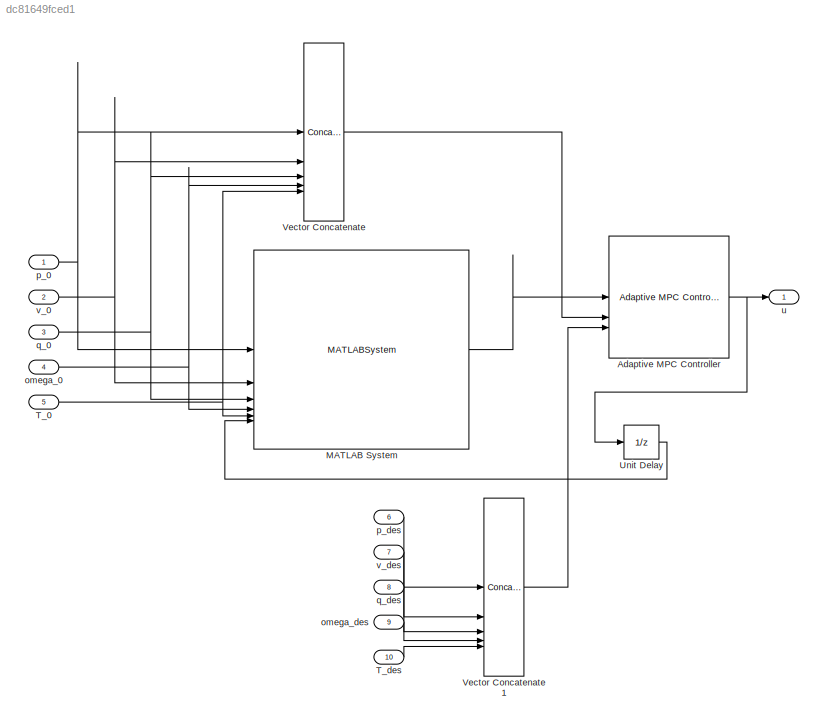
MODEL slx_dc81649fced1
KIND model
CONFIG AbsTol = auto
CONFIG EnableMultiTasking = off
CONFIG FixedStep = auto
CONFIG InitFcn = m = 1;\nv_0 = [0; 0; 0];\nq_0 = [1; 0; 0; 0];\nomega_0 = [0; 0; 0];\nT_0 = [0; 0; 9.81 * m];\nu_0 = [0; 0; 0];\n\nts = 0.05;\n\n[A, B, C, D, DX] = computePlantMats(v_0, q_0, omega_0, T_0, u_0);\nPlantSS = ss(A, B, C, D, ts);\nmpc_obj = mpc(PlantSS, ts);\n\nelems(1) = Simulink.BusElement; \nelems(1).Name = 'A';\nelems(1).Dimensions = size(A);\nelems(2) = Simulink.BusElement;\nelems(2).Name = 'B';\nelems(2).Dimension...<+809ch>
CONFIG MaxStep = auto
CONFIG MinStep = auto
CONFIG RelTol = 1e-3
CONFIG SampleTimeConstraint = Unconstrained
CONFIG SolverName = VariableStepAuto
CONFIG StartTime = 0.0
CONFIG StopTime = 10.0
WORKSPACE source: mxarray member
WORKSPACE Object: Simulink.LookupTable (value not decoded)
WORKSPACE Var = 0
BLOCK [Reference] Adaptive MPC Controller  REF=mpclib/Adaptive MPC Controller  (lib defined in mdl_ae329e0e0455)
  SCDEnableBlockLinearizationSpecification = on
  SourceBlock = mpclib/Adaptive MPC Controller
  SourceType = Adaptive MPC
BLOCK [MATLABSystem] MATLAB System
  MaskType = Plant
  SimulateUsing = Code generation
  System = Plant
BLOCK [Inport] T_0
  Port = 5
  PortDimensions = 3
BLOCK [Inport] T_des
  Port = 10
  PortDimensions = 3
BLOCK [UnitDelay] Unit Delay
  HasFrameUpgradeWarning = on
  SampleTime = -1
BLOCK [Concatenate] Vector Concatenate
  NumInputs = 5
BLOCK [Concatenate] Vector Concatenate1
  NumInputs = 5
BLOCK [Inport] omega_0
  Port = 4
  PortDimensions = 3
BLOCK [Inport] omega_des
  Port = 9
  PortDimensions = 3
BLOCK [Inport] p_0
  PortDimensions = 3
BLOCK [Inport] p_des
  Port = 6
  PortDimensions = 3
BLOCK [Inport] q_0
  Port = 3
  PortDimensions = 4
BLOCK [Inport] q_des
  Port = 8
  PortDimensions = 4
BLOCK [Outport] u
BLOCK [Inport] v_0
  Port = 2
  PortDimensions = 3
BLOCK [Inport] v_des
  Port = 7
  PortDimensions = 3
NET Adaptive MPC Controller:1 -> Unit Delay:1, u:1
LINE MATLAB System:1 -> Adaptive MPC Controller:1
NET T_0:1 -> MATLAB System:5, Vector Concatenate:5
LINE T_des:1 -> Vector Concatenate1:5
LINE Unit Delay:1 -> MATLAB System:6
LINE Vector Concatenate1:1 -> Adaptive MPC Controller:3
LINE Vector Concatenate:1 -> Adaptive MPC Controller:2
NET omega_0:1 -> MATLAB System:4, Vector Concatenate:4
LINE omega_des:1 -> Vector Concatenate1:4
NET p_0:1 -> MATLAB System:1, Vector Concatenate:1
LINE p_des:1 -> Vector Concatenate1:1
NET q_0:1 -> MATLAB System:3, Vector Concatenate:3
LINE q_des:1 -> Vector Concatenate1:3
NET v_0:1 -> MATLAB System:2, Vector Concatenate:2
LINE v_des:1 -> Vector Concatenate1:2
note: NET lines group one-source signal fan-out (src -> all destinations, sorted); 1:1 wires keep LINE
